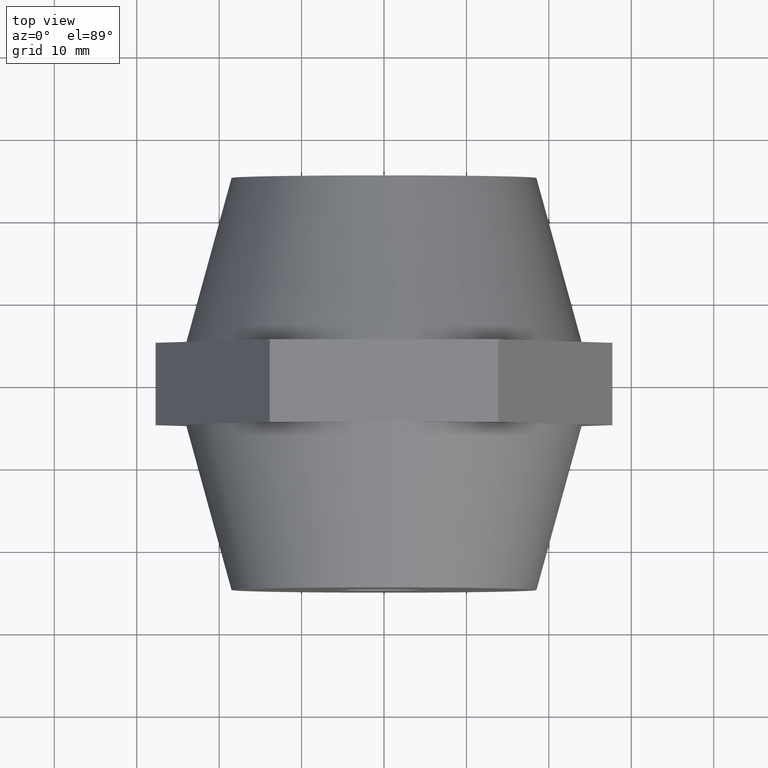
[diagram: clean part render]
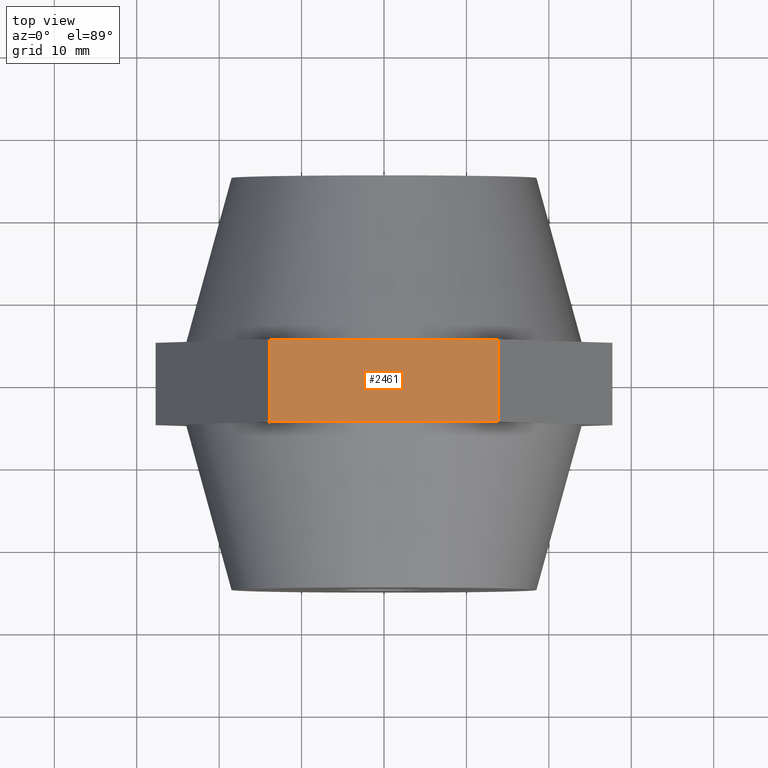
[diagram: same view with one face highlighted and labeled with its STEP entity id]
A machine part, top view. The second image highlights one B-rep face of the part: STEP entity #2461.
In plain terms, the highlighted planar face has unit normal (0, 0, -1).
Its self-contained STEP definition (entity closure, byte-faithful):
#29 = LINE ( 'NONE', #3899, #782 ) ;
#34 = LINE ( 'NONE', #3790, #2163 ) ;
#53 = EDGE_CURVE ( 'NONE', #3402, #1465, #29, .T. ) ;
#94 = LINE ( 'NONE', #2711, #2710 ) ;
#119 = DIRECTION ( 'NONE',  ( 1.000000000000000000, 0.0000000000000000000, 0.0000000000000000000 ) ) ;
#127 = FACE_OUTER_BOUND ( 'NONE', #2879, .T. ) ;
#142 = CARTESIAN_POINT ( 'NONE',  ( -13.85640646055101900, 5.000000000000000000, 24.00000000000000000 ) ) ;
#447 = LINE ( 'NONE', #3086, #1963 ) ;
#530 = ORIENTED_EDGE ( 'NONE', *, *, #2102, .F. ) ;
#537 = VERTEX_POINT ( 'NONE', #2311 ) ;
#636 = VERTEX_POINT ( 'NONE', #2017 ) ;
#753 = PLANE ( 'NONE',  #3087 ) ;
#782 = VECTOR ( 'NONE', #892, 1000.000000000000000 ) ;
#892 = DIRECTION ( 'NONE',  ( 0.0000000000000000000, -1.000000000000000000, 0.0000000000000000000 ) ) ;
#1187 = CARTESIAN_POINT ( 'NONE',  ( -13.85640646055101900, 5.000000000000000000, 24.00000000000000000 ) ) ;
#1350 = CARTESIAN_POINT ( 'NONE',  ( 13.85640646055101900, -5.000000000000000000, 24.00000000000000000 ) ) ;
#1352 = VECTOR ( 'NONE', #2660, 1000.000000000000000 ) ;
#1378 = DIRECTION ( 'NONE',  ( -1.000000000000000000, 0.0000000000000000000, 0.0000000000000000000 ) ) ;
#1465 = VERTEX_POINT ( 'NONE', #1505 ) ;
#1505 = CARTESIAN_POINT ( 'NONE',  ( -13.85640646055101900, -5.000000000000000000, 24.00000000000000000 ) ) ;
#1657 = CARTESIAN_POINT ( 'NONE',  ( -13.85640646055101900, -5.000000000000000000, 24.00000000000000000 ) ) ;
#1760 = DIRECTION ( 'NONE',  ( 1.000000000000000000, 0.0000000000000000000, 0.0000000000000000000 ) ) ;
#1827 = VECTOR ( 'NONE', #2608, 1000.000000000000000 ) ;
#1949 = EDGE_CURVE ( 'NONE', #537, #2011, #447, .T. ) ;
#1963 = VECTOR ( 'NONE', #2513, 1000.000000000000000 ) ;
#2011 = VERTEX_POINT ( 'NONE', #1350 ) ;
#2017 = CARTESIAN_POINT ( 'NONE',  ( 1.071450255564768000E-014, 5.000000000000000000, 24.00000000000000000 ) ) ;
#2102 = EDGE_CURVE ( 'NONE', #3402, #636, #34, .T. ) ;
#2163 = VECTOR ( 'NONE', #119, 1000.000000000000000 ) ;
#2266 = LINE ( 'NONE', #2629, #1352 ) ;
#2311 = CARTESIAN_POINT ( 'NONE',  ( 13.85640646055101900, 5.000000000000000000, 24.00000000000000000 ) ) ;
#2371 = ORIENTED_EDGE ( 'NONE', *, *, #1949, .F. ) ;
#2461 = ADVANCED_FACE ( 'NONE', ( #127 ), #753, .F. ) ;
#2513 = DIRECTION ( 'NONE',  ( 0.0000000000000000000, -1.000000000000000000, 0.0000000000000000000 ) ) ;
#2608 = DIRECTION ( 'NONE',  ( 1.000000000000000000, 0.0000000000000000000, 0.0000000000000000000 ) ) ;
#2629 = CARTESIAN_POINT ( 'NONE',  ( -13.85640646055101900, -5.000000000000000000, 24.00000000000000000 ) ) ;
#2660 = DIRECTION ( 'NONE',  ( 1.000000000000000000, 0.0000000000000000000, 0.0000000000000000000 ) ) ;
#2710 = VECTOR ( 'NONE', #1760, 1000.000000000000000 ) ;
#2711 = CARTESIAN_POINT ( 'NONE',  ( -13.85640646055101900, 5.000000000000000000, 24.00000000000000000 ) ) ;
#2773 = EDGE_CURVE ( 'NONE', #1465, #2828, #3324, .T. ) ;
#2828 = VERTEX_POINT ( 'NONE', #3567 ) ;
#2879 = EDGE_LOOP ( 'NONE', ( #3314, #3302, #2371, #3851, #530, #3067 ) ) ;
#2898 = DIRECTION ( 'NONE',  ( 0.0000000000000000000, 0.0000000000000000000, -1.000000000000000000 ) ) ;
#3067 = ORIENTED_EDGE ( 'NONE', *, *, #53, .T. ) ;
#3086 = CARTESIAN_POINT ( 'NONE',  ( 13.85640646055101900, 5.000000000000000000, 24.00000000000000000 ) ) ;
#3087 = AXIS2_PLACEMENT_3D ( 'NONE', #142, #2898, #1378 ) ;
#3302 = ORIENTED_EDGE ( 'NONE', *, *, #3844, .T. ) ;
#3314 = ORIENTED_EDGE ( 'NONE', *, *, #2773, .T. ) ;
#3324 = LINE ( 'NONE', #1657, #1827 ) ;
#3402 = VERTEX_POINT ( 'NONE', #1187 ) ;
#3440 = EDGE_CURVE ( 'NONE', #636, #537, #94, .T. ) ;
#3567 = CARTESIAN_POINT ( 'NONE',  ( 7.959741419701128200E-015, -5.000000000000000000, 24.00000000000000000 ) ) ;
#3790 = CARTESIAN_POINT ( 'NONE',  ( -13.85640646055101900, 5.000000000000000000, 24.00000000000000000 ) ) ;
#3844 = EDGE_CURVE ( 'NONE', #2828, #2011, #2266, .T. ) ;
#3851 = ORIENTED_EDGE ( 'NONE', *, *, #3440, .F. ) ;
#3899 = CARTESIAN_POINT ( 'NONE',  ( -13.85640646055101900, 5.000000000000000000, 24.00000000000000000 ) ) ;